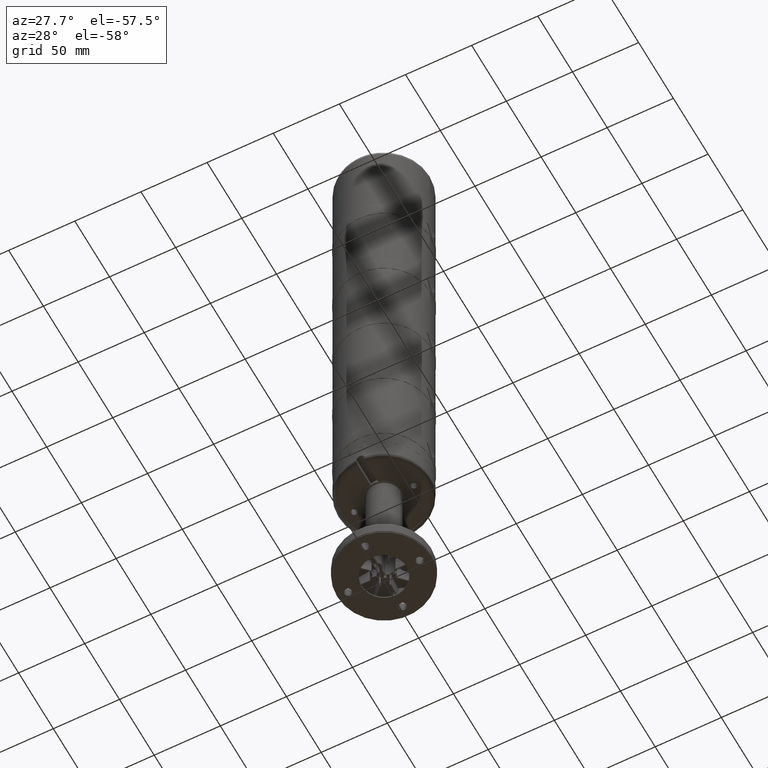
[diagram: clean part render]
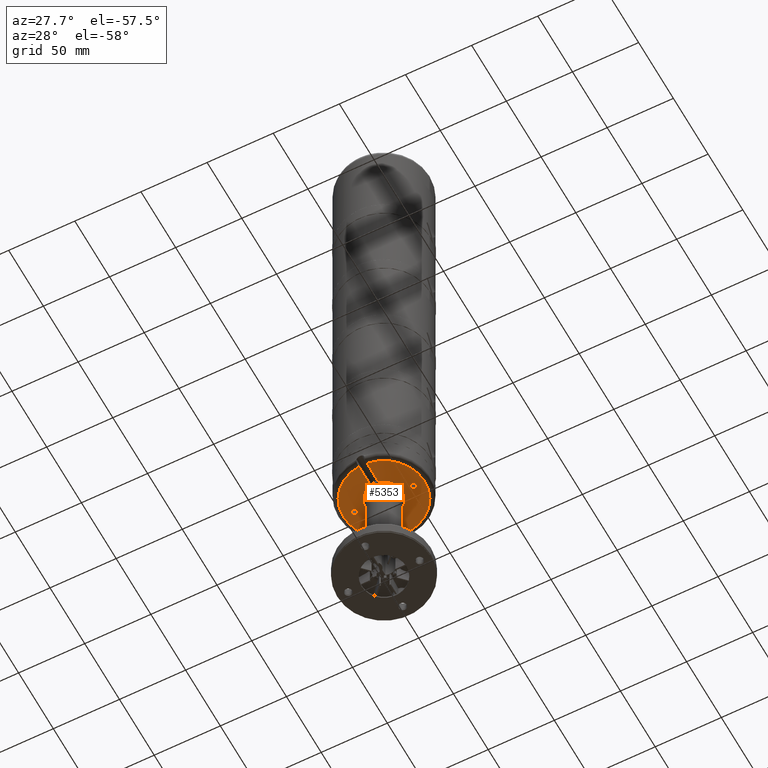
[diagram: same view with one face highlighted and labeled with its STEP entity id]
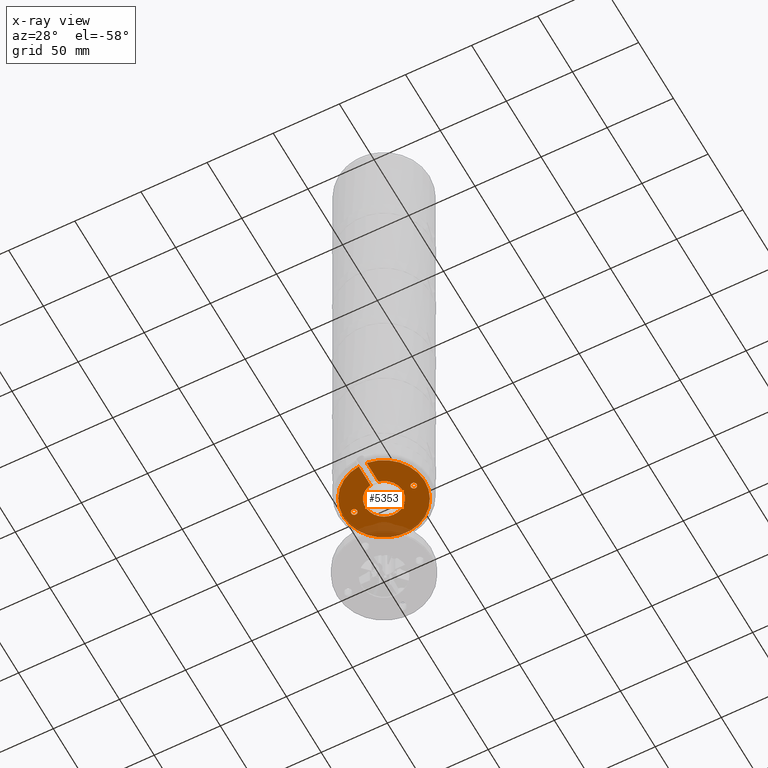
[diagram: x-ray of the same camera — body ghosted, the highlighted face saturated]
A machine part, auxiliary view. The second image highlights one B-rep face of the part: STEP entity #5353.
The next image is the same camera in x-ray: the body ghosted, the highlighted face saturated — about 12% of this face is hidden behind the body in this view.
In plain terms, the highlighted planar face has unit normal (0, 0, -1).
Its self-contained STEP definition (entity closure, byte-faithful):
#1523=LINE('',#34623,#2848);
#1524=LINE('',#34624,#2849);
#2848=VECTOR('',#27473,1.);
#2849=VECTOR('',#27474,1.);
#4251=FACE_BOUND('',#8325,.T.);
#4252=FACE_BOUND('',#8326,.T.);
#4253=FACE_BOUND('',#8327,.T.);
#5353=ADVANCED_FACE('',(#4251,#4252,#4253),#6079,.T.);
#6079=PLANE('',#21963);
#8325=EDGE_LOOP('',(#13098,#13099,#13100,#13101));
#8326=EDGE_LOOP('',(#13102));
#8327=EDGE_LOOP('',(#13103));
#13098=ORIENTED_EDGE('',*,*,#18351,.F.);
#13099=ORIENTED_EDGE('',*,*,#18346,.T.);
#13100=ORIENTED_EDGE('',*,*,#18352,.F.);
#13101=ORIENTED_EDGE('',*,*,#18349,.F.);
#13102=ORIENTED_EDGE('',*,*,#18353,.F.);
#13103=ORIENTED_EDGE('',*,*,#18354,.F.);
#15740=VERTEX_POINT('',#34610);
#15741=VERTEX_POINT('',#34612);
#15743=VERTEX_POINT('',#34618);
#15744=VERTEX_POINT('',#34620);
#15745=VERTEX_POINT('',#34626);
#15746=VERTEX_POINT('',#34628);
#18346=EDGE_CURVE('',#15740,#15741,#19772,.T.);
#18349=EDGE_CURVE('',#15743,#15744,#19774,.T.);
#18351=EDGE_CURVE('',#15740,#15743,#1523,.T.);
#18352=EDGE_CURVE('',#15744,#15741,#1524,.T.);
#18353=EDGE_CURVE('',#15745,#15745,#19775,.T.);
#18354=EDGE_CURVE('',#15746,#15746,#19776,.T.);
#19772=CIRCLE('',#21956,30.75);
#19774=CIRCLE('',#21959,14.1);
#19775=CIRCLE('',#21961,2.25);
#19776=CIRCLE('',#21962,2.25);
#21956=AXIS2_PLACEMENT_3D('',#34613,#27461,#27462);
#21959=AXIS2_PLACEMENT_3D('',#34619,#27468,#27469);
#21961=AXIS2_PLACEMENT_3D('',#34625,#27475,#27476);
#21962=AXIS2_PLACEMENT_3D('',#34627,#27477,#27478);
#21963=AXIS2_PLACEMENT_3D('',#34629,#27479,#27480);
#27461=DIRECTION('',(0.,0.,-1.));
#27462=DIRECTION('',(-1.,0.,0.));
#27468=DIRECTION('',(0.,0.,-1.));
#27469=DIRECTION('',(-1.,0.,0.));
#27473=DIRECTION('',(0.,1.,0.));
#27474=DIRECTION('',(0.,-1.,0.));
#27475=DIRECTION('',(0.,0.,-1.));
#27476=DIRECTION('',(-1.,0.,0.));
#27477=DIRECTION('',(0.,0.,-1.));
#27478=DIRECTION('',(-1.,0.,0.));
#27479=DIRECTION('',(0.,0.,-1.));
#27480=DIRECTION('',(-1.,0.,0.));
#34610=CARTESIAN_POINT('',(-3.,-30.6033086446547,39.25));
#34612=CARTESIAN_POINT('',(3.,-30.6033086446547,39.25));
#34613=CARTESIAN_POINT('',(0.,0.,39.25));
#34618=CARTESIAN_POINT('',(-3.,-13.777155003846,39.25));
#34619=CARTESIAN_POINT('',(0.,0.,39.25));
#34620=CARTESIAN_POINT('',(3.,-13.777155003846,39.25));
#34623=CARTESIAN_POINT('',(-3.,-14.1,39.25));
#34624=CARTESIAN_POINT('',(3.,-14.1,39.25));
#34625=CARTESIAN_POINT('',(22.5,-2.75536429610035E-015,39.25));
#34626=CARTESIAN_POINT('',(20.25,-2.75536429610035E-015,39.25));
#34627=CARTESIAN_POINT('',(-22.5,0.,39.25));
#34628=CARTESIAN_POINT('',(-24.75,0.,39.25));
#34629=CARTESIAN_POINT('',(0.,-14.1,39.25));